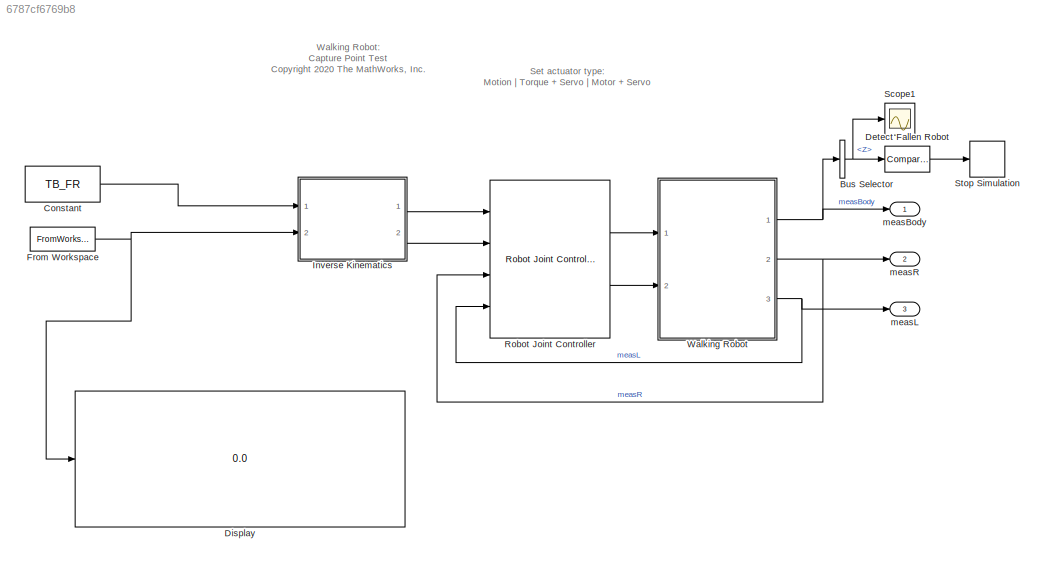
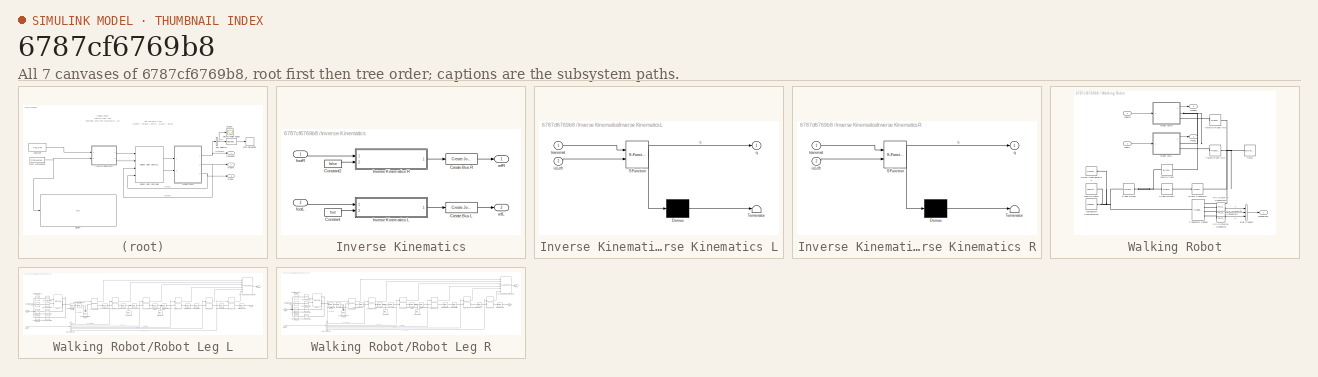
[diagram: thumbnail index - all 7 canvases of the model, root first then tree order]
MODEL slx_6787cf6769b8
KIND model
CONFIG AbsTol = auto
CONFIG EnableMultiTasking = off
CONFIG FixedStep = auto
CONFIG MaxStep = auto
CONFIG MinStep = auto
CONFIG RelTol = 1e-3
CONFIG SampleTimeConstraint = Unconstrained
CONFIG Solver = VariableStepAuto
CONFIG SolverName = VariableStepAuto
CONFIG StartTime = 0.0
CONFIG StopTime = 10.0
BLOCK [BusSelector] Bus Selector
  OutputSignals = Z
  Ports = [1, 1]
BLOCK [Constant] Constant
  Value = TB_FR
BLOCK [Reference] Detect Fallen Robot  REF=simulink/Logic and Bit
Operations/Compare
To Constant
  Ports = [1, 1]
  SourceBlock = simulink/Logic and Bit\nOperations/Compare\nTo Constant
  SourceProductBaseCode = SL
  SourceType = Compare To Constant
BLOCK [Display] Display
  Decimation = 1
  Ports = [1]
BLOCK [FromWorkspace] From Workspace
  OutputAfterFinalValue = Holding final value
  SampleTime = Ts
  VariableName = simin
BLOCK [SubSystem] Inverse Kinematics
  Ports = [2, 2]
  RequestExecContextInheritance = off
BLOCK [Constant] Inverse Kinematics/Constant
  Value = true
BLOCK [Constant] Inverse Kinematics/Constant2
  Value = false
BLOCK [Reference] Inverse Kinematics/Create Bus L  REF=walkingRobotUtils/Create Joint Angle Bus
  Ports = [1, 1]
  SourceBlock = walkingRobotUtils/Create Joint Angle Bus
  SourceType = SubSystem
BLOCK [Reference] Inverse Kinematics/Create Bus R  REF=walkingRobotUtils/Create Joint Angle Bus
  Ports = [1, 1]
  SourceBlock = walkingRobotUtils/Create Joint Angle Bus
  SourceType = SubSystem
BLOCK [SubSystem] Inverse Kinematics/Inverse Kinematics L
  ErrorFcn = Stateflow.Translate.translate
  PermitHierarchicalResolution = ExplicitOnly
  Ports = [2, 1]
  RequestExecContextInheritance = off
  SFBlockType = MATLAB Function
  TreatAsAtomicUnit = on
BLOCK [Demux] Inverse Kinematics/Inverse Kinematics L/ Demux 
  Outputs = 1
  Ports = [1, 1]
BLOCK [S-Function] Inverse Kinematics/Inverse Kinematics L/ SFunction 
  EnableBusSupport = on
  FunctionName = sf_sfun
  PortCounts = [2 2]
  Ports = [2, 2]
  SFcnIsStateOwnerBlock = off
  SFunctionDeploymentMode = off
  Tag = Stateflow S-Function 1
BLOCK [Terminator] Inverse Kinematics/Inverse Kinematics L/ Terminator 
BLOCK [Inport] Inverse Kinematics/Inverse Kinematics L/isLeft
  Port = 2
BLOCK [Outport] Inverse Kinematics/Inverse Kinematics L/q
BLOCK [Inport] Inverse Kinematics/Inverse Kinematics L/transmat
BLOCK [SubSystem] Inverse Kinematics/Inverse Kinematics R
  ErrorFcn = Stateflow.Translate.translate
  PermitHierarchicalResolution = ExplicitOnly
  Ports = [2, 1]
  RequestExecContextInheritance = off
  SFBlockType = MATLAB Function
  TreatAsAtomicUnit = on
BLOCK [Demux] Inverse Kinematics/Inverse Kinematics R/ Demux 
  Outputs = 1
  Ports = [1, 1]
BLOCK [S-Function] Inverse Kinematics/Inverse Kinematics R/ SFunction 
  EnableBusSupport = on
  FunctionName = sf_sfun
  PortCounts = [2 2]
  Ports = [2, 2]
  SFcnIsStateOwnerBlock = off
  SFunctionDeploymentMode = off
  Tag = Stateflow S-Function 2
BLOCK [Terminator] Inverse Kinematics/Inverse Kinematics R/ Terminator 
BLOCK [Inport] Inverse Kinematics/Inverse Kinematics R/isLeft
  Port = 2
BLOCK [Outport] Inverse Kinematics/Inverse Kinematics R/q
BLOCK [Inport] Inverse Kinematics/Inverse Kinematics R/transmat
BLOCK [Inport] Inverse Kinematics/footL
  Port = 2
BLOCK [Inport] Inverse Kinematics/footR
BLOCK [Outport] Inverse Kinematics/refL
  Port = 2
BLOCK [Outport] Inverse Kinematics/refR
BLOCK [Reference] Robot Joint Controller  REF=walkingRobotUtils/Robot Joint Controller
  Ports = [4, 2]
  SourceBlock = walkingRobotUtils/Robot Joint Controller
  SourceType = SubSystem
BLOCK [Scope] Scope1
  Floating = off
  NumInputPorts = 1
  Ports = [1]
  ScopeSpecificationString = Simulink.scopes.TimeScopeBlockCfg('CurrentConfiguration', extmgr.ConfigurationSet(extmgr.Configuration('Core','General UI',true),extmgr.Configuration('Core','Source UI',true),extmgr.Configuration('Sources','WiredSimulink',true,'DataLoggingVariableName','ScopeData1'),extmgr.Configuration('Visuals','Time Domain',true,'SerializedDisplays',{struct('MinYLimReal','0.69351','MaxYLimReal','0.70444','YLabe...<+1406ch>
BLOCK [Stop] Stop Simulation
BLOCK [SubSystem] Walking Robot
  Ports = [2, 3]
  RequestExecContextInheritance = off
BLOCK [BusCreator] Walking Robot/Bus Creator
  DisplayOption = bar
  InheritFromInputs = on
  Inputs = 3
  Ports = [3, 1]
BLOCK [Inport] Walking Robot/InputL
  Port = 2
BLOCK [Inport] Walking Robot/InputR
BLOCK [Reference] Walking Robot/Mechanism Configuration  REF=sm_lib/Utilities/Mechanism
Configuration
  Ports = [0, 0, 0, 0, 0, 0, 1]
  SourceBlock = sm_lib/Utilities/Mechanism\nConfiguration
  SourceProductBaseCode = MS
  SourceType = Mechanism\nConfiguration
BLOCK [Reference] Walking Robot/PS-Simulink Converter  REF=nesl_utility/PS-Simulink
Converter
  Ports = [0, 1, 0, 0, 0, 1]
  SourceBlock = nesl_utility/PS-Simulink\nConverter
  SourceProductBaseCode = SS
  SourceType = PS-Simulink\nConverter
BLOCK [Reference] Walking Robot/PS-Simulink Converter1  REF=nesl_utility/PS-Simulink
Converter
  Ports = [0, 1, 0, 0, 0, 1]
  SourceBlock = nesl_utility/PS-Simulink\nConverter
  SourceProductBaseCode = SS
  SourceType = PS-Simulink\nConverter
BLOCK [Reference] Walking Robot/PS-Simulink Converter2  REF=nesl_utility/PS-Simulink
Converter
  Ports = [0, 1, 0, 0, 0, 1]
  SourceBlock = nesl_utility/PS-Simulink\nConverter
  SourceProductBaseCode = SS
  SourceType = PS-Simulink\nConverter
BLOCK [Reference] Walking Robot/Plane Offset  REF=sm_lib/Frames and
Transforms/Rigid
Transform
  Ports = [0, 0, 0, 0, 0, 1, 1]
  SourceBlock = sm_lib/Frames and\nTransforms/Rigid\nTransform
  SourceProductBaseCode = MS
  SourceType = Rigid\nTransform
BLOCK [Reference] Walking Robot/Plane Offset1  REF=sm_lib/Frames and
Transforms/Rigid
Transform
  Ports = [0, 0, 0, 0, 0, 1, 1]
  SourceBlock = sm_lib/Frames and\nTransforms/Rigid\nTransform
  SourceProductBaseCode = MS
  SourceType = Rigid\nTransform
BLOCK [Reference] Walking Robot/Rigid Transform  REF=sm_lib/Frames and
Transforms/Rigid
Transform
  Ports = [0, 0, 0, 0, 0, 1, 1]
  SourceBlock = sm_lib/Frames and\nTransforms/Rigid\nTransform
  SourceProductBaseCode = MS
  SourceType = Rigid\nTransform
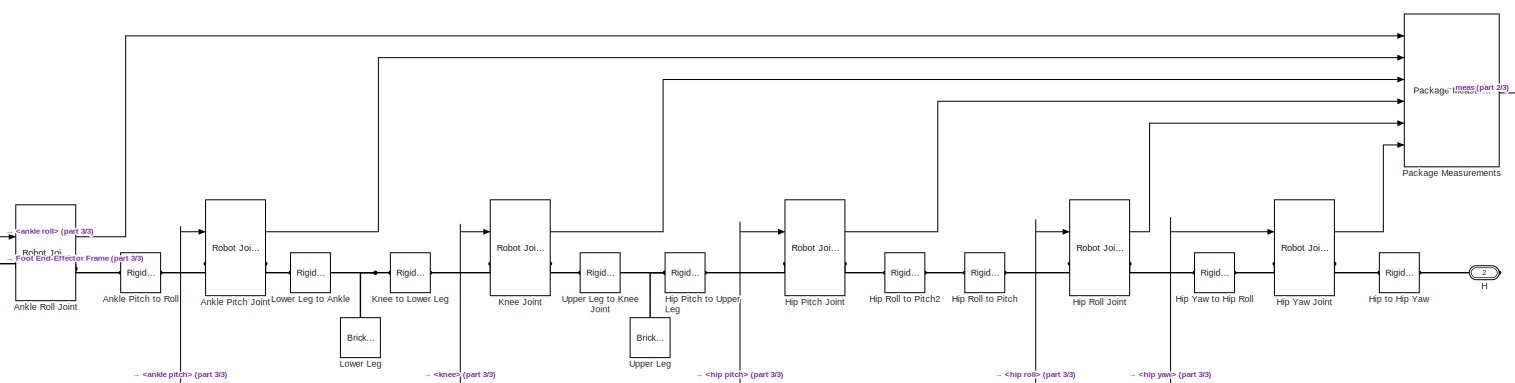
[diagram: Walking Robot/Robot Leg L - part 1/3, central region]
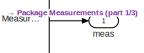
[diagram: Walking Robot/Robot Leg L - part 2/3, top right region]
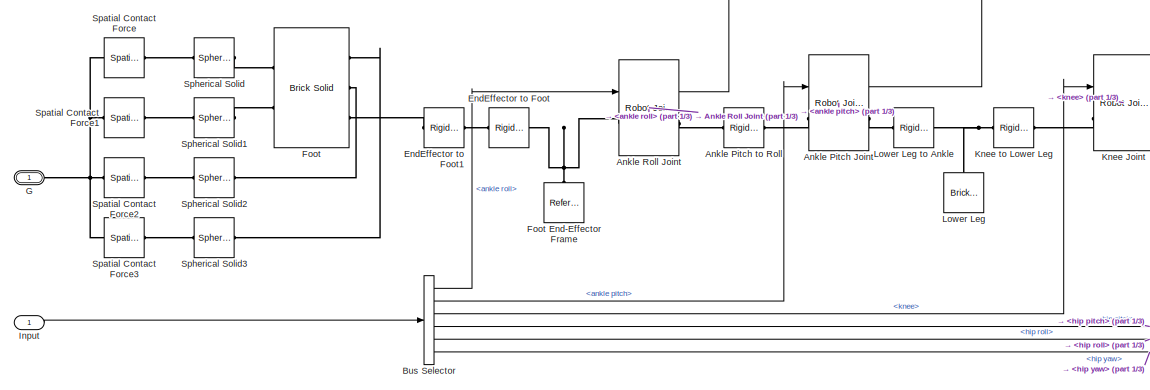
[diagram: Walking Robot/Robot Leg L - part 3/3, middle left region]
BLOCK [SubSystem] Walking Robot/Robot Leg L
  Ports = [1, 1, 0, 0, 0, 0, 2]
  RequestExecContextInheritance = off
BLOCK [Reference] Walking Robot/Robot Leg L/Ankle Pitch Joint  REF=walkingRobotUtils/Robot Joint
  Ports = [1, 1, 0, 0, 0, 1, 1]
  SourceBlock = walkingRobotUtils/Robot Joint
BLOCK [Reference] Walking Robot/Robot Leg L/Ankle Pitch to Roll  REF=sm_lib/Frames and
Transforms/Rigid
Transform
  NameLocation = top
  Ports = [0, 0, 0, 0, 0, 1, 1]
  SourceBlock = sm_lib/Frames and\nTransforms/Rigid\nTransform
  SourceProductBaseCode = MS
  SourceType = Rigid\nTransform
BLOCK [Reference] Walking Robot/Robot Leg L/Ankle Roll Joint  REF=walkingRobotUtils/Robot Joint
  Ports = [1, 1, 0, 0, 0, 1, 1]
  SourceBlock = walkingRobotUtils/Robot Joint
BLOCK [BusSelector] Walking Robot/Robot Leg L/Bus Selector
  OutputSignals = ankle roll,ankle pitch,knee,hip pitch,hip roll,hip yaw
  Ports = [1, 6]
BLOCK [Reference] Walking Robot/Robot Leg L/EndEffector to Foot  REF=sm_lib/Frames and
Transforms/Rigid
Transform
  NameLocation = top
  Ports = [0, 0, 0, 0, 0, 1, 1]
  SourceBlock = sm_lib/Frames and\nTransforms/Rigid\nTransform
  SourceProductBaseCode = MS
  SourceType = Rigid\nTransform
BLOCK [Reference] Walking Robot/Robot Leg L/EndEffector to Foot1  REF=sm_lib/Frames and
Transforms/Rigid
Transform
  Ports = [0, 0, 0, 0, 0, 1, 1]
  SourceBlock = sm_lib/Frames and\nTransforms/Rigid\nTransform
  SourceProductBaseCode = MS
  SourceType = Rigid\nTransform
BLOCK [Reference] Walking Robot/Robot Leg L/Foot  REF=sm_lib/Body Elements/Brick Solid
  Ports = [0, 0, 0, 0, 0, 3, 2]
  SourceBlock = sm_lib/Body Elements/Brick Solid
  SourceProductBaseCode = MS
  SourceType = Brick Solid
BLOCK [Reference] Walking Robot/Robot Leg L/Foot End-Effector Frame  REF=sm_lib/Frames and
Transforms/Reference
Frame
  NameLocation = right
  Ports = [0, 0, 0, 0, 0, 0, 1]
  SourceBlock = sm_lib/Frames and\nTransforms/Reference\nFrame
  SourceProductBaseCode = MS
  SourceType = Reference\nFrame
BLOCK [PMIOPort] Walking Robot/Robot Leg L/G
  Side = Right
BLOCK [PMIOPort] Walking Robot/Robot Leg L/H
  Port = 2
  Side = Right
BLOCK [Reference] Walking Robot/Robot Leg L/Hip Pitch Joint  REF=walkingRobotUtils/Robot Joint
  Ports = [1, 1, 0, 0, 0, 1, 1]
  SourceBlock = walkingRobotUtils/Robot Joint
BLOCK [Reference] Walking Robot/Robot Leg L/Hip Pitch to Upper Leg  REF=sm_lib/Frames and
Transforms/Rigid
Transform
  NameLocation = top
  Ports = [0, 0, 0, 0, 0, 1, 1]
  SourceBlock = sm_lib/Frames and\nTransforms/Rigid\nTransform
  SourceProductBaseCode = MS
  SourceType = Rigid\nTransform
BLOCK [Reference] Walking Robot/Robot Leg L/Hip Roll Joint  REF=walkingRobotUtils/Robot Joint
  Ports = [1, 1, 0, 0, 0, 1, 1]
  SourceBlock = walkingRobotUtils/Robot Joint
BLOCK [Reference] Walking Robot/Robot Leg L/Hip Roll to Pitch  REF=sm_lib/Frames and
Transforms/Rigid
Transform
  Ports = [0, 0, 0, 0, 0, 1, 1]
  SourceBlock = sm_lib/Frames and\nTransforms/Rigid\nTransform
  SourceProductBaseCode = MS
  SourceType = Rigid\nTransform
BLOCK [Reference] Walking Robot/Robot Leg L/Hip Roll to Pitch2  REF=sm_lib/Frames and
Transforms/Rigid
Transform
  NameLocation = top
  Ports = [0, 0, 0, 0, 0, 1, 1]
  SourceBlock = sm_lib/Frames and\nTransforms/Rigid\nTransform
  SourceProductBaseCode = MS
  SourceType = Rigid\nTransform
BLOCK [Reference] Walking Robot/Robot Leg L/Hip Yaw Joint  REF=walkingRobotUtils/Robot Joint
  Ports = [1, 1, 0, 0, 0, 1, 1]
  SourceBlock = walkingRobotUtils/Robot Joint
BLOCK [Reference] Walking Robot/Robot Leg L/Hip Yaw to Hip Roll  REF=sm_lib/Frames and
Transforms/Rigid
Transform
  NameLocation = top
  Ports = [0, 0, 0, 0, 0, 1, 1]
  SourceBlock = sm_lib/Frames and\nTransforms/Rigid\nTransform
  SourceProductBaseCode = MS
  SourceType = Rigid\nTransform
BLOCK [Reference] Walking Robot/Robot Leg L/Hip to Hip Yaw  REF=sm_lib/Frames and
Transforms/Rigid
Transform
  NameLocation = top
  Ports = [0, 0, 0, 0, 0, 1, 1]
  SourceBlock = sm_lib/Frames and\nTransforms/Rigid\nTransform
  SourceProductBaseCode = MS
  SourceType = Rigid\nTransform
BLOCK [Inport] Walking Robot/Robot Leg L/Input
BLOCK [Reference] Walking Robot/Robot Leg L/Knee Joint  REF=walkingRobotUtils/Robot Joint
  Ports = [1, 1, 0, 0, 0, 1, 1]
  SourceBlock = walkingRobotUtils/Robot Joint
BLOCK [Reference] Walking Robot/Robot Leg L/Knee to Lower Leg  REF=sm_lib/Frames and
Transforms/Rigid
Transform
  NameLocation = top
  Ports = [0, 0, 0, 0, 0, 1, 1]
  SourceBlock = sm_lib/Frames and\nTransforms/Rigid\nTransform
  SourceProductBaseCode = MS
  SourceType = Rigid\nTransform
BLOCK [Reference] Walking Robot/Robot Leg L/Lower Leg  REF=sm_lib/Body Elements/Brick Solid
  NameLocation = right
  Ports = [0, 0, 0, 0, 0, 0, 1]
  SourceBlock = sm_lib/Body Elements/Brick Solid
  SourceProductBaseCode = MS
  SourceType = Brick Solid
BLOCK [Reference] Walking Robot/Robot Leg L/Lower Leg to Ankle  REF=sm_lib/Frames and
Transforms/Rigid
Transform
  NameLocation = top
  Ports = [0, 0, 0, 0, 0, 1, 1]
  SourceBlock = sm_lib/Frames and\nTransforms/Rigid\nTransform
  SourceProductBaseCode = MS
  SourceType = Rigid\nTransform
BLOCK [Reference] Walking Robot/Robot Leg L/Package Measurements  REF=walkingRobotUtils/Package Measurements
  Ports = [6, 1]
  SourceBlock = walkingRobotUtils/Package Measurements
  SourceType = SubSystem
BLOCK [Reference] Walking Robot/Robot Leg L/Spatial Contact Force  REF=sm_lib/Forces and
Torques/Spatial
Contact Force
  Ports = [0, 0, 0, 0, 0, 1, 1]
  SourceBlock = sm_lib/Forces and\nTorques/Spatial\nContact Force
  SourceProductBaseCode = MS
  SourceType = Spatial\nContact Force
BLOCK [Reference] Walking Robot/Robot Leg L/Spatial Contact Force1  REF=sm_lib/Forces and
Torques/Spatial
Contact Force
  Ports = [0, 0, 0, 0, 0, 1, 1]
  SourceBlock = sm_lib/Forces and\nTorques/Spatial\nContact Force
  SourceProductBaseCode = MS
  SourceType = Spatial\nContact Force
BLOCK [Reference] Walking Robot/Robot Leg L/Spatial Contact Force2  REF=sm_lib/Forces and
Torques/Spatial
Contact Force
  Ports = [0, 0, 0, 0, 0, 1, 1]
  SourceBlock = sm_lib/Forces and\nTorques/Spatial\nContact Force
  SourceProductBaseCode = MS
  SourceType = Spatial\nContact Force
BLOCK [Reference] Walking Robot/Robot Leg L/Spatial Contact Force3  REF=sm_lib/Forces and
Torques/Spatial
Contact Force
  Ports = [0, 0, 0, 0, 0, 1, 1]
  SourceBlock = sm_lib/Forces and\nTorques/Spatial\nContact Force
  SourceProductBaseCode = MS
  SourceType = Spatial\nContact Force
BLOCK [Reference] Walking Robot/Robot Leg L/Spherical Solid  REF=sm_lib/Body Elements/Spherical Solid
  Ports = [0, 0, 0, 0, 0, 1, 1]
  SourceBlock = sm_lib/Body Elements/Spherical Solid
  SourceProductBaseCode = MS
  SourceType = Spherical Solid
BLOCK [Reference] Walking Robot/Robot Leg L/Spherical Solid1  REF=sm_lib/Body Elements/Spherical Solid
  Ports = [0, 0, 0, 0, 0, 1, 1]
  SourceBlock = sm_lib/Body Elements/Spherical Solid
  SourceProductBaseCode = MS
  SourceType = Spherical Solid
BLOCK [Reference] Walking Robot/Robot Leg L/Spherical Solid2  REF=sm_lib/Body Elements/Spherical Solid
  Ports = [0, 0, 0, 0, 0, 1, 1]
  SourceBlock = sm_lib/Body Elements/Spherical Solid
  SourceProductBaseCode = MS
  SourceType = Spherical Solid
BLOCK [Reference] Walking Robot/Robot Leg L/Spherical Solid3  REF=sm_lib/Body Elements/Spherical Solid
  Ports = [0, 0, 0, 0, 0, 1, 1]
  SourceBlock = sm_lib/Body Elements/Spherical Solid
  SourceProductBaseCode = MS
  SourceType = Spherical Solid
BLOCK [Reference] Walking Robot/Robot Leg L/Upper Leg  REF=sm_lib/Body Elements/Brick Solid
  NameLocation = right
  Ports = [0, 0, 0, 0, 0, 0, 1]
  SourceBlock = sm_lib/Body Elements/Brick Solid
  SourceProductBaseCode = MS
  SourceType = Brick Solid
BLOCK [Reference] Walking Robot/Robot Leg L/Upper Leg to Knee Joint  REF=sm_lib/Frames and
Transforms/Rigid
Transform
  NameLocation = top
  Ports = [0, 0, 0, 0, 0, 1, 1]
  SourceBlock = sm_lib/Frames and\nTransforms/Rigid\nTransform
  SourceProductBaseCode = MS
  SourceType = Rigid\nTransform
BLOCK [Outport] Walking Robot/Robot Leg L/meas
  VectorParamsAs1DForOutWhenUnconnected = off
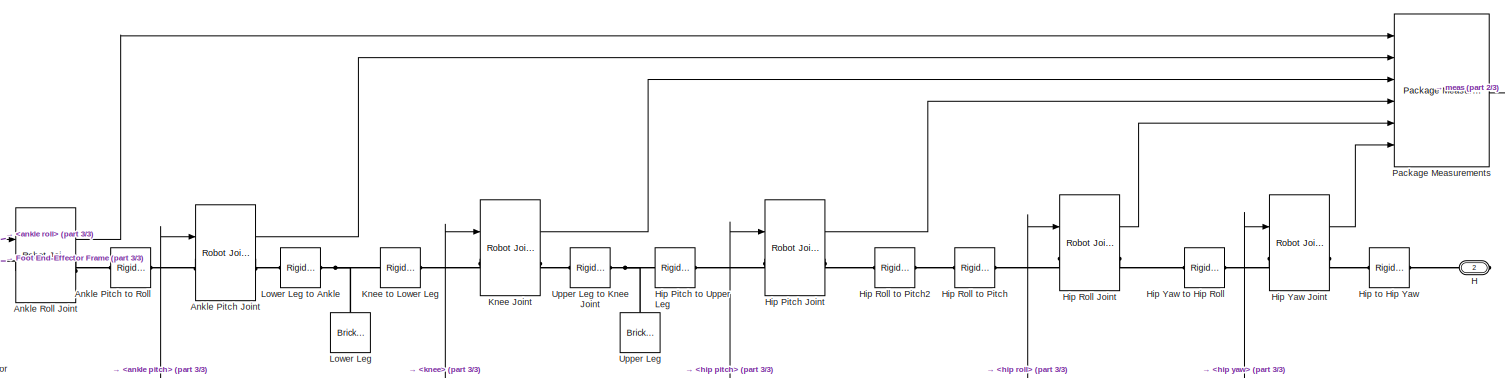
[diagram: Walking Robot/Robot Leg R - part 1/3, central region]
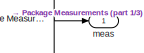
[diagram: Walking Robot/Robot Leg R - part 2/3, top right region]
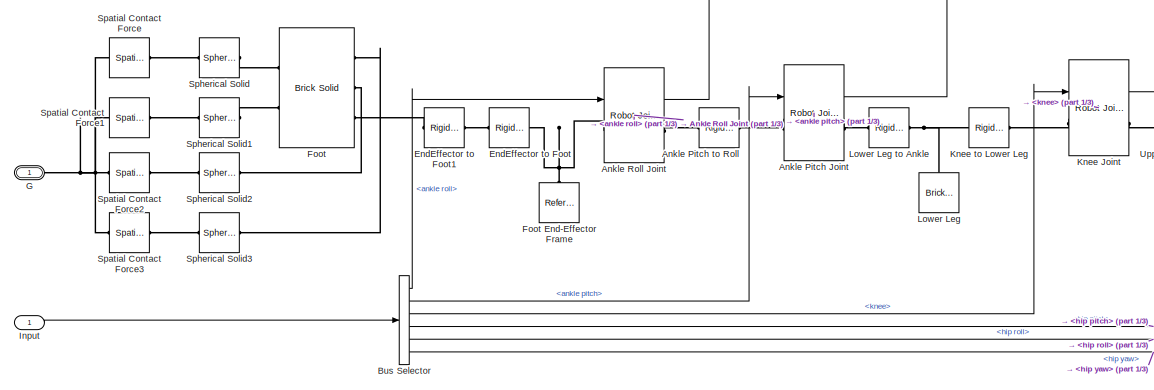
[diagram: Walking Robot/Robot Leg R - part 3/3, middle left region]
BLOCK [SubSystem] Walking Robot/Robot Leg R
  Ports = [1, 1, 0, 0, 0, 0, 2]
  RequestExecContextInheritance = off
BLOCK [Reference] Walking Robot/Robot Leg R/Ankle Pitch Joint  REF=walkingRobotUtils/Robot Joint
  Ports = [1, 1, 0, 0, 0, 1, 1]
  SourceBlock = walkingRobotUtils/Robot Joint
BLOCK [Reference] Walking Robot/Robot Leg R/Ankle Pitch to Roll  REF=sm_lib/Frames and
Transforms/Rigid
Transform
  NameLocation = top
  Ports = [0, 0, 0, 0, 0, 1, 1]
  SourceBlock = sm_lib/Frames and\nTransforms/Rigid\nTransform
  SourceProductBaseCode = MS
  SourceType = Rigid\nTransform
BLOCK [Reference] Walking Robot/Robot Leg R/Ankle Roll Joint  REF=walkingRobotUtils/Robot Joint
  Ports = [1, 1, 0, 0, 0, 1, 1]
  SourceBlock = walkingRobotUtils/Robot Joint
BLOCK [BusSelector] Walking Robot/Robot Leg R/Bus Selector
  OutputSignals = ankle roll,ankle pitch,knee,hip pitch,hip roll,hip yaw
  Ports = [1, 6]
BLOCK [Reference] Walking Robot/Robot Leg R/EndEffector to Foot  REF=sm_lib/Frames and
Transforms/Rigid
Transform
  NameLocation = top
  Ports = [0, 0, 0, 0, 0, 1, 1]
  SourceBlock = sm_lib/Frames and\nTransforms/Rigid\nTransform
  SourceProductBaseCode = MS
  SourceType = Rigid\nTransform
BLOCK [Reference] Walking Robot/Robot Leg R/EndEffector to Foot1  REF=sm_lib/Frames and
Transforms/Rigid
Transform
  Ports = [0, 0, 0, 0, 0, 1, 1]
  SourceBlock = sm_lib/Frames and\nTransforms/Rigid\nTransform
  SourceProductBaseCode = MS
  SourceType = Rigid\nTransform
BLOCK [Reference] Walking Robot/Robot Leg R/Foot  REF=sm_lib/Body Elements/Brick Solid
  Ports = [0, 0, 0, 0, 0, 3, 2]
  SourceBlock = sm_lib/Body Elements/Brick Solid
  SourceProductBaseCode = MS
  SourceType = Brick Solid
BLOCK [Reference] Walking Robot/Robot Leg R/Foot End-Effector Frame  REF=sm_lib/Frames and
Transforms/Reference
Frame
  NameLocation = right
  Ports = [0, 0, 0, 0, 0, 0, 1]
  SourceBlock = sm_lib/Frames and\nTransforms/Reference\nFrame
  SourceProductBaseCode = MS
  SourceType = Reference\nFrame
BLOCK [PMIOPort] Walking Robot/Robot Leg R/G
  Side = Right
BLOCK [PMIOPort] Walking Robot/Robot Leg R/H
  Port = 2
  Side = Right
BLOCK [Reference] Walking Robot/Robot Leg R/Hip Pitch Joint  REF=walkingRobotUtils/Robot Joint
  Ports = [1, 1, 0, 0, 0, 1, 1]
  SourceBlock = walkingRobotUtils/Robot Joint
BLOCK [Reference] Walking Robot/Robot Leg R/Hip Pitch to Upper Leg  REF=sm_lib/Frames and
Transforms/Rigid
Transform
  NameLocation = top
  Ports = [0, 0, 0, 0, 0, 1, 1]
  SourceBlock = sm_lib/Frames and\nTransforms/Rigid\nTransform
  SourceProductBaseCode = MS
  SourceType = Rigid\nTransform
BLOCK [Reference] Walking Robot/Robot Leg R/Hip Roll Joint  REF=walkingRobotUtils/Robot Joint
  Ports = [1, 1, 0, 0, 0, 1, 1]
  SourceBlock = walkingRobotUtils/Robot Joint
BLOCK [Reference] Walking Robot/Robot Leg R/Hip Roll to Pitch  REF=sm_lib/Frames and
Transforms/Rigid
Transform
  Ports = [0, 0, 0, 0, 0, 1, 1]
  SourceBlock = sm_lib/Frames and\nTransforms/Rigid\nTransform
  SourceProductBaseCode = MS
  SourceType = Rigid\nTransform
BLOCK [Reference] Walking Robot/Robot Leg R/Hip Roll to Pitch2  REF=sm_lib/Frames and
Transforms/Rigid
Transform
  NameLocation = top
  Ports = [0, 0, 0, 0, 0, 1, 1]
  SourceBlock = sm_lib/Frames and\nTransforms/Rigid\nTransform
  SourceProductBaseCode = MS
  SourceType = Rigid\nTransform
BLOCK [Reference] Walking Robot/Robot Leg R/Hip Yaw Joint  REF=walkingRobotUtils/Robot Joint
  Ports = [1, 1, 0, 0, 0, 1, 1]
  SourceBlock = walkingRobotUtils/Robot Joint
BLOCK [Reference] Walking Robot/Robot Leg R/Hip Yaw to Hip Roll  REF=sm_lib/Frames and
Transforms/Rigid
Transform
  NameLocation = top
  Ports = [0, 0, 0, 0, 0, 1, 1]
  SourceBlock = sm_lib/Frames and\nTransforms/Rigid\nTransform
  SourceProductBaseCode = MS
  SourceType = Rigid\nTransform
BLOCK [Reference] Walking Robot/Robot Leg R/Hip to Hip Yaw  REF=sm_lib/Frames and
Transforms/Rigid
Transform
  NameLocation = top
  Ports = [0, 0, 0, 0, 0, 1, 1]
  SourceBlock = sm_lib/Frames and\nTransforms/Rigid\nTransform
  SourceProductBaseCode = MS
  SourceType = Rigid\nTransform
BLOCK [Inport] Walking Robot/Robot Leg R/Input
BLOCK [Reference] Walking Robot/Robot Leg R/Knee Joint  REF=walkingRobotUtils/Robot Joint
  Ports = [1, 1, 0, 0, 0, 1, 1]
  SourceBlock = walkingRobotUtils/Robot Joint
BLOCK [Reference] Walking Robot/Robot Leg R/Knee to Lower Leg  REF=sm_lib/Frames and
Transforms/Rigid
Transform
  NameLocation = top
  Ports = [0, 0, 0, 0, 0, 1, 1]
  SourceBlock = sm_lib/Frames and\nTransforms/Rigid\nTransform
  SourceProductBaseCode = MS
  SourceType = Rigid\nTransform
BLOCK [Reference] Walking Robot/Robot Leg R/Lower Leg  REF=sm_lib/Body Elements/Brick Solid
  NameLocation = right
  Ports = [0, 0, 0, 0, 0, 0, 1]
  SourceBlock = sm_lib/Body Elements/Brick Solid
  SourceProductBaseCode = MS
  SourceType = Brick Solid
BLOCK [Reference] Walking Robot/Robot Leg R/Lower Leg to Ankle  REF=sm_lib/Frames and
Transforms/Rigid
Transform
  NameLocation = top
  Ports = [0, 0, 0, 0, 0, 1, 1]
  SourceBlock = sm_lib/Frames and\nTransforms/Rigid\nTransform
  SourceProductBaseCode = MS
  SourceType = Rigid\nTransform
BLOCK [Reference] Walking Robot/Robot Leg R/Package Measurements  REF=walkingRobotUtils/Package Measurements
  Ports = [6, 1]
  SourceBlock = walkingRobotUtils/Package Measurements
  SourceType = SubSystem
BLOCK [Reference] Walking Robot/Robot Leg R/Spatial Contact Force  REF=sm_lib/Forces and
Torques/Spatial
Contact Force
  Ports = [0, 0, 0, 0, 0, 1, 1]
  SourceBlock = sm_lib/Forces and\nTorques/Spatial\nContact Force
  SourceProductBaseCode = MS
  SourceType = Spatial\nContact Force
BLOCK [Reference] Walking Robot/Robot Leg R/Spatial Contact Force1  REF=sm_lib/Forces and
Torques/Spatial
Contact Force
  Ports = [0, 0, 0, 0, 0, 1, 1]
  SourceBlock = sm_lib/Forces and\nTorques/Spatial\nContact Force
  SourceProductBaseCode = MS
  SourceType = Spatial\nContact Force
BLOCK [Reference] Walking Robot/Robot Leg R/Spatial Contact Force2  REF=sm_lib/Forces and
Torques/Spatial
Contact Force
  Ports = [0, 0, 0, 0, 0, 1, 1]
  SourceBlock = sm_lib/Forces and\nTorques/Spatial\nContact Force
  SourceProductBaseCode = MS
  SourceType = Spatial\nContact Force
BLOCK [Reference] Walking Robot/Robot Leg R/Spatial Contact Force3  REF=sm_lib/Forces and
Torques/Spatial
Contact Force
  Ports = [0, 0, 0, 0, 0, 1, 1]
  SourceBlock = sm_lib/Forces and\nTorques/Spatial\nContact Force
  SourceProductBaseCode = MS
  SourceType = Spatial\nContact Force
BLOCK [Reference] Walking Robot/Robot Leg R/Spherical Solid  REF=sm_lib/Body Elements/Spherical Solid
  Ports = [0, 0, 0, 0, 0, 1, 1]
  SourceBlock = sm_lib/Body Elements/Spherical Solid
  SourceProductBaseCode = MS
  SourceType = Spherical Solid
BLOCK [Reference] Walking Robot/Robot Leg R/Spherical Solid1  REF=sm_lib/Body Elements/Spherical Solid
  Ports = [0, 0, 0, 0, 0, 1, 1]
  SourceBlock = sm_lib/Body Elements/Spherical Solid
  SourceProductBaseCode = MS
  SourceType = Spherical Solid
BLOCK [Reference] Walking Robot/Robot Leg R/Spherical Solid2  REF=sm_lib/Body Elements/Spherical Solid
  Ports = [0, 0, 0, 0, 0, 1, 1]
  SourceBlock = sm_lib/Body Elements/Spherical Solid
  SourceProductBaseCode = MS
  SourceType = Spherical Solid
BLOCK [Reference] Walking Robot/Robot Leg R/Spherical Solid3  REF=sm_lib/Body Elements/Spherical Solid
  Ports = [0, 0, 0, 0, 0, 1, 1]
  SourceBlock = sm_lib/Body Elements/Spherical Solid
  SourceProductBaseCode = MS
  SourceType = Spherical Solid
BLOCK [Reference] Walking Robot/Robot Leg R/Upper Leg  REF=sm_lib/Body Elements/Brick Solid
  NameLocation = right
  Ports = [0, 0, 0, 0, 0, 0, 1]
  SourceBlock = sm_lib/Body Elements/Brick Solid
  SourceProductBaseCode = MS
  SourceType = Brick Solid
BLOCK [Reference] Walking Robot/Robot Leg R/Upper Leg to Knee Joint  REF=sm_lib/Frames and
Transforms/Rigid
Transform
  NameLocation = top
  Ports = [0, 0, 0, 0, 0, 1, 1]
  SourceBlock = sm_lib/Frames and\nTransforms/Rigid\nTransform
  SourceProductBaseCode = MS
  SourceType = Rigid\nTransform
BLOCK [Outport] Walking Robot/Robot Leg R/meas
  VectorParamsAs1DForOutWhenUnconnected = off
BLOCK [Reference] Walking Robot/Solver Configuration  REF=nesl_utility/Solver
Configuration
  Ports = [0, 0, 0, 0, 0, 0, 1]
  SourceBlock = nesl_utility/Solver\nConfiguration
  SourceProductBaseCode = SS
  SourceType = Solver\nConfiguration
BLOCK [Reference] Walking Robot/Torso  REF=sm_lib/Body Elements/Brick Solid
  Ports = [0, 0, 0, 0, 0, 0, 1]
  SourceBlock = sm_lib/Body Elements/Brick Solid
  SourceProductBaseCode = MS
  SourceType = Brick Solid
BLOCK [Reference] Walking Robot/Torso to Left Hip  REF=sm_lib/Frames and
Transforms/Rigid
Transform
  Ports = [0, 0, 0, 0, 0, 1, 1]
  SourceBlock = sm_lib/Frames and\nTransforms/Rigid\nTransform
  SourceProductBaseCode = MS
  SourceType = Rigid\nTransform
BLOCK [Reference] Walking Robot/Torso to Right Hip  REF=sm_lib/Frames and
Transforms/Rigid
Transform
  Ports = [0, 0, 0, 0, 0, 1, 1]
  SourceBlock = sm_lib/Frames and\nTransforms/Rigid\nTransform
  SourceProductBaseCode = MS
  SourceType = Rigid\nTransform
BLOCK [Reference] Walking Robot/Transform Sensor  REF=sm_lib/Frames and
Transforms/Transform
Sensor
  Ports = [0, 0, 0, 0, 0, 1, 4]
  SourceBlock = sm_lib/Frames and\nTransforms/Transform\nSensor
  SourceProductBaseCode = MS
  SourceType = Transform\nSensor
BLOCK [Reference] Walking Robot/World Frame  REF=sm_lib/Frames and
Transforms/World Frame
  Ports = [0, 0, 0, 0, 0, 0, 1]
  SourceBlock = sm_lib/Frames and\nTransforms/World Frame
  SourceProductBaseCode = MS
  SourceType = World Frame
BLOCK [Reference] Walking Robot/World Plane  REF=sm_lib/Body Elements/Brick Solid
  Ports = [0, 0, 0, 0, 0, 1, 1]
  SourceBlock = sm_lib/Body Elements/Brick Solid
  SourceProductBaseCode = MS
  SourceType = Brick Solid
BLOCK [Outport] Walking Robot/measBody
  VectorParamsAs1DForOutWhenUnconnected = off
BLOCK [Outport] Walking Robot/measL
  Port = 3
  VectorParamsAs1DForOutWhenUnconnected = off
BLOCK [Outport] Walking Robot/measR
  Port = 2
  VectorParamsAs1DForOutWhenUnconnected = off
BLOCK [Outport] measBody
  VectorParamsAs1DForOutWhenUnconnected = off
BLOCK [Outport] measL
  Port = 3
  VectorParamsAs1DForOutWhenUnconnected = off
BLOCK [Outport] measR
  Port = 2
  VectorParamsAs1DForOutWhenUnconnected = off
ANNOTATION (root): Walking Robot: Capture Point Test <copyright redacted>
ANNOTATION (root): Set actuator type: Motion | Torque + Servo | Motor + Servo
NET Bus Selector:1 -> Detect Fallen Robot:1, Scope1:1
LINE Constant:1 -> Inverse Kinematics:1
LINE Detect Fallen Robot:1 -> Stop Simulation:1
NET From Workspace:1 -> Display:1, Inverse Kinematics:2
LINE Inverse Kinematics/Constant2:1 -> Inverse Kinematics/Inverse Kinematics R:2
LINE Inverse Kinematics/Constant:1 -> Inverse Kinematics/Inverse Kinematics L:2
LINE Inverse Kinematics/Create Bus L:1 -> Inverse Kinematics/refL:1
LINE Inverse Kinematics/Create Bus R:1 -> Inverse Kinematics/refR:1
LINE Inverse Kinematics/Inverse Kinematics L:1 -> Inverse Kinematics/Create Bus L:1
LINE Inverse Kinematics/Inverse Kinematics R:1 -> Inverse Kinematics/Create Bus R:1
LINE Inverse Kinematics/footL:1 -> Inverse Kinematics/Inverse Kinematics L:1
LINE Inverse Kinematics/footR:1 -> Inverse Kinematics/Inverse Kinematics R:1
LINE Inverse Kinematics:1 -> Robot Joint Controller:1
LINE Inverse Kinematics:2 -> Robot Joint Controller:2
LINE Robot Joint Controller:1 -> Walking Robot:1
LINE Robot Joint Controller:2 -> Walking Robot:2
LINE Walking Robot/Bus Creator:1 -> Walking Robot/measBody:1
LINE Walking Robot/InputL:1 -> Walking Robot/Robot Leg L:1
LINE Walking Robot/InputR:1 -> Walking Robot/Robot Leg R:1
LINE Walking Robot/PS-Simulink Converter1:1 -> Walking Robot/Bus Creator:2
LINE Walking Robot/PS-Simulink Converter2:1 -> Walking Robot/Bus Creator:1
LINE Walking Robot/PS-Simulink Converter:1 -> Walking Robot/Bus Creator:3
LINE Walking Robot/Robot Leg L/Ankle Pitch Joint:1 -> Walking Robot/Robot Leg L/Package Measurements:2
LINE Walking Robot/Robot Leg L/Ankle Roll Joint:1 -> Walking Robot/Robot Leg L/Package Measurements:1
LINE Walking Robot/Robot Leg L/Bus Selector:1 -> Walking Robot/Robot Leg L/Ankle Roll Joint:1
LINE Walking Robot/Robot Leg L/Bus Selector:2 -> Walking Robot/Robot Leg L/Ankle Pitch Joint:1
LINE Walking Robot/Robot Leg L/Bus Selector:3 -> Walking Robot/Robot Leg L/Knee Joint:1
LINE Walking Robot/Robot Leg L/Bus Selector:4 -> Walking Robot/Robot Leg L/Hip Pitch Joint:1
LINE Walking Robot/Robot Leg L/Bus Selector:5 -> Walking Robot/Robot Leg L/Hip Roll Joint:1
LINE Walking Robot/Robot Leg L/Bus Selector:6 -> Walking Robot/Robot Leg L/Hip Yaw Joint:1
LINE Walking Robot/Robot Leg L/Hip Pitch Joint:1 -> Walking Robot/Robot Leg L/Package Measurements:4
LINE Walking Robot/Robot Leg L/Hip Roll Joint:1 -> Walking Robot/Robot Leg L/Package Measurements:5
LINE Walking Robot/Robot Leg L/Hip Yaw Joint:1 -> Walking Robot/Robot Leg L/Package Measurements:6
LINE Walking Robot/Robot Leg L/Input:1 -> Walking Robot/Robot Leg L/Bus Selector:1
LINE Walking Robot/Robot Leg L/Knee Joint:1 -> Walking Robot/Robot Leg L/Package Measurements:3
LINE Walking Robot/Robot Leg L/Package Measurements:1 -> Walking Robot/Robot Leg L/meas:1
LINE Walking Robot/Robot Leg L:1 -> Walking Robot/measL:1
LINE Walking Robot/Robot Leg R/Ankle Pitch Joint:1 -> Walking Robot/Robot Leg R/Package Measurements:2
LINE Walking Robot/Robot Leg R/Ankle Roll Joint:1 -> Walking Robot/Robot Leg R/Package Measurements:1
LINE Walking Robot/Robot Leg R/Bus Selector:1 -> Walking Robot/Robot Leg R/Ankle Roll Joint:1
LINE Walking Robot/Robot Leg R/Bus Selector:2 -> Walking Robot/Robot Leg R/Ankle Pitch Joint:1
LINE Walking Robot/Robot Leg R/Bus Selector:3 -> Walking Robot/Robot Leg R/Knee Joint:1
LINE Walking Robot/Robot Leg R/Bus Selector:4 -> Walking Robot/Robot Leg R/Hip Pitch Joint:1
LINE Walking Robot/Robot Leg R/Bus Selector:5 -> Walking Robot/Robot Leg R/Hip Roll Joint:1
LINE Walking Robot/Robot Leg R/Bus Selector:6 -> Walking Robot/Robot Leg R/Hip Yaw Joint:1
LINE Walking Robot/Robot Leg R/Hip Pitch Joint:1 -> Walking Robot/Robot Leg R/Package Measurements:4
LINE Walking Robot/Robot Leg R/Hip Roll Joint:1 -> Walking Robot/Robot Leg R/Package Measurements:5
LINE Walking Robot/Robot Leg R/Hip Yaw Joint:1 -> Walking Robot/Robot Leg R/Package Measurements:6
LINE Walking Robot/Robot Leg R/Input:1 -> Walking Robot/Robot Leg R/Bus Selector:1
LINE Walking Robot/Robot Leg R/Knee Joint:1 -> Walking Robot/Robot Leg R/Package Measurements:3
LINE Walking Robot/Robot Leg R/Package Measurements:1 -> Walking Robot/Robot Leg R/meas:1
LINE Walking Robot/Robot Leg R:1 -> Walking Robot/measR:1
NET Walking Robot:1 -> Bus Selector:1, measBody:1
NET Walking Robot:2 -> Robot Joint Controller:3, measR:1
NET Walking Robot:3 -> Robot Joint Controller:4, measL:1
PNET net1: Walking Robot/Mechanism Configuration:RConn1 -- Walking Robot/Plane Offset:LConn1 -- Walking Robot/Solver Configuration:RConn1 -- Walking Robot/Transform Sensor:LConn1 -- Walking Robot/World Frame:RConn1
PLINE Walking Robot/PS-Simulink Converter1:LConn1 -- Walking Robot/Transform Sensor:RConn3
PLINE Walking Robot/PS-Simulink Converter2:LConn1 -- Walking Robot/Transform Sensor:RConn2
PLINE Walking Robot/PS-Simulink Converter:LConn1 -- Walking Robot/Transform Sensor:RConn4
PNET net2: Walking Robot/Plane Offset1:LConn1 -- Walking Robot/Plane Offset:RConn1 -- Walking Robot/World Plane:RConn1
PLINE Walking Robot/Plane Offset1:RConn1 -- Walking Robot/Rigid Transform:LConn1
PNET net3: Walking Robot/Rigid Transform:RConn1 -- Walking Robot/Torso to Left Hip:LConn1 -- Walking Robot/Torso to Right Hip:LConn1 -- Walking Robot/Torso:RConn1 -- Walking Robot/Transform Sensor:RConn1
PLINE Walking Robot/Robot Leg L/Ankle Pitch Joint:LConn1 -- Walking Robot/Robot Leg L/Ankle Pitch to Roll:LConn1
PLINE Walking Robot/Robot Leg L/Ankle Pitch Joint:RConn1 -- Walking Robot/Robot Leg L/Lower Leg to Ankle:RConn1
PLINE Walking Robot/Robot Leg L/Ankle Pitch to Roll:RConn1 -- Walking Robot/Robot Leg L/Ankle Roll Joint:RConn1
PNET net4: Walking Robot/Robot Leg L/Ankle Roll Joint:LConn1 -- Walking Robot/Robot Leg L/EndEffector to Foot:LConn1 -- Walking Robot/Robot Leg L/Foot End-Effector Frame:RConn1
PLINE Walking Robot/Robot Leg L/EndEffector to Foot1:LConn1 -- Walking Robot/Robot Leg L/EndEffector to Foot:RConn1
PLINE Walking Robot/Robot Leg L/EndEffector to Foot1:RConn1 -- Walking Robot/Robot Leg L/Foot:LConn3
PLINE Walking Robot/Robot Leg L/Foot:LConn1 -- Walking Robot/Robot Leg L/Spherical Solid3:RConn1
PLINE Walking Robot/Robot Leg L/Foot:LConn2 -- Walking Robot/Robot Leg L/Spherical Solid2:RConn1
PLINE Walking Robot/Robot Leg L/Foot:RConn1 -- Walking Robot/Robot Leg L/Spherical Solid:RConn1
PLINE Walking Robot/Robot Leg L/Foot:RConn2 -- Walking Robot/Robot Leg L/Spherical Solid1:RConn1
PNET net5: Walking Robot/Robot Leg L/G:RConn1 -- Walking Robot/Robot Leg L/Spatial Contact Force1:LConn1 -- Walking Robot/Robot Leg L/Spatial Contact Force2:LConn1 -- Walking Robot/Robot Leg L/Spatial Contact Force3:LConn1 -- Walking Robot/Robot Leg L/Spatial Contact Force:LConn1
PLINE Walking Robot/Robot Leg L/H:RConn1 -- Walking Robot/Robot Leg L/Hip to Hip Yaw:LConn1
PLINE Walking Robot/Robot Leg L/Hip Pitch Joint:LConn1 -- Walking Robot/Robot Leg L/Hip Pitch to Upper Leg:LConn1
PLINE Walking Robot/Robot Leg L/Hip Pitch Joint:RConn1 -- Walking Robot/Robot Leg L/Hip Roll to Pitch2:RConn1
PNET net6: Walking Robot/Robot Leg L/Hip Pitch to Upper Leg:RConn1 -- Walking Robot/Robot Leg L/Upper Leg to Knee Joint:LConn1 -- Walking Robot/Robot Leg L/Upper Leg:RConn1
PLINE Walking Robot/Robot Leg L/Hip Roll Joint:LConn1 -- Walking Robot/Robot Leg L/Hip Roll to Pitch:LConn1
PLINE Walking Robot/Robot Leg L/Hip Roll Joint:RConn1 -- Walking Robot/Robot Leg L/Hip Yaw to Hip Roll:RConn1
PLINE Walking Robot/Robot Leg L/Hip Roll to Pitch2:LConn1 -- Walking Robot/Robot Leg L/Hip Roll to Pitch:RConn1
PLINE Walking Robot/Robot Leg L/Hip Yaw Joint:LConn1 -- Walking Robot/Robot Leg L/Hip Yaw to Hip Roll:LConn1
PLINE Walking Robot/Robot Leg L/Hip Yaw Joint:RConn1 -- Walking Robot/Robot Leg L/Hip to Hip Yaw:RConn1
PLINE Walking Robot/Robot Leg L/Knee Joint:LConn1 -- Walking Robot/Robot Leg L/Knee to Lower Leg:LConn1
PLINE Walking Robot/Robot Leg L/Knee Joint:RConn1 -- Walking Robot/Robot Leg L/Upper Leg to Knee Joint:RConn1
PNET net7: Walking Robot/Robot Leg L/Knee to Lower Leg:RConn1 -- Walking Robot/Robot Leg L/Lower Leg to Ankle:LConn1 -- Walking Robot/Robot Leg L/Lower Leg:RConn1
PLINE Walking Robot/Robot Leg L/Spatial Contact Force1:RConn1 -- Walking Robot/Robot Leg L/Spherical Solid1:LConn1
PLINE Walking Robot/Robot Leg L/Spatial Contact Force2:RConn1 -- Walking Robot/Robot Leg L/Spherical Solid2:LConn1
PLINE Walking Robot/Robot Leg L/Spatial Contact Force3:RConn1 -- Walking Robot/Robot Leg L/Spherical Solid3:LConn1
PLINE Walking Robot/Robot Leg L/Spatial Contact Force:RConn1 -- Walking Robot/Robot Leg L/Spherical Solid:LConn1
PNET net8: Walking Robot/Robot Leg L:RConn1 -- Walking Robot/Robot Leg R:RConn1 -- Walking Robot/World Plane:LConn1
PLINE Walking Robot/Robot Leg L:RConn2 -- Walking Robot/Torso to Left Hip:RConn1
PLINE Walking Robot/Robot Leg R/Ankle Pitch Joint:LConn1 -- Walking Robot/Robot Leg R/Ankle Pitch to Roll:LConn1
PLINE Walking Robot/Robot Leg R/Ankle Pitch Joint:RConn1 -- Walking Robot/Robot Leg R/Lower Leg to Ankle:RConn1
PLINE Walking Robot/Robot Leg R/Ankle Pitch to Roll:RConn1 -- Walking Robot/Robot Leg R/Ankle Roll Joint:RConn1
PNET net9: Walking Robot/Robot Leg R/Ankle Roll Joint:LConn1 -- Walking Robot/Robot Leg R/EndEffector to Foot:LConn1 -- Walking Robot/Robot Leg R/Foot End-Effector Frame:RConn1
PLINE Walking Robot/Robot Leg R/EndEffector to Foot1:LConn1 -- Walking Robot/Robot Leg R/EndEffector to Foot:RConn1
PLINE Walking Robot/Robot Leg R/EndEffector to Foot1:RConn1 -- Walking Robot/Robot Leg R/Foot:LConn3
PLINE Walking Robot/Robot Leg R/Foot:LConn1 -- Walking Robot/Robot Leg R/Spherical Solid3:RConn1
PLINE Walking Robot/Robot Leg R/Foot:LConn2 -- Walking Robot/Robot Leg R/Spherical Solid2:RConn1
PLINE Walking Robot/Robot Leg R/Foot:RConn1 -- Walking Robot/Robot Leg R/Spherical Solid:RConn1
PLINE Walking Robot/Robot Leg R/Foot:RConn2 -- Walking Robot/Robot Leg R/Spherical Solid1:RConn1
PNET net10: Walking Robot/Robot Leg R/G:RConn1 -- Walking Robot/Robot Leg R/Spatial Contact Force1:LConn1 -- Walking Robot/Robot Leg R/Spatial Contact Force2:LConn1 -- Walking Robot/Robot Leg R/Spatial Contact Force3:LConn1 -- Walking Robot/Robot Leg R/Spatial Contact Force:LConn1
PLINE Walking Robot/Robot Leg R/H:RConn1 -- Walking Robot/Robot Leg R/Hip to Hip Yaw:LConn1
PLINE Walking Robot/Robot Leg R/Hip Pitch Joint:LConn1 -- Walking Robot/Robot Leg R/Hip Pitch to Upper Leg:LConn1
PLINE Walking Robot/Robot Leg R/Hip Pitch Joint:RConn1 -- Walking Robot/Robot Leg R/Hip Roll to Pitch2:RConn1
PNET net11: Walking Robot/Robot Leg R/Hip Pitch to Upper Leg:RConn1 -- Walking Robot/Robot Leg R/Upper Leg to Knee Joint:LConn1 -- Walking Robot/Robot Leg R/Upper Leg:RConn1
PLINE Walking Robot/Robot Leg R/Hip Roll Joint:LConn1 -- Walking Robot/Robot Leg R/Hip Roll to Pitch:LConn1
PLINE Walking Robot/Robot Leg R/Hip Roll Joint:RConn1 -- Walking Robot/Robot Leg R/Hip Yaw to Hip Roll:RConn1
PLINE Walking Robot/Robot Leg R/Hip Roll to Pitch2:LConn1 -- Walking Robot/Robot Leg R/Hip Roll to Pitch:RConn1
PLINE Walking Robot/Robot Leg R/Hip Yaw Joint:LConn1 -- Walking Robot/Robot Leg R/Hip Yaw to Hip Roll:LConn1
PLINE Walking Robot/Robot Leg R/Hip Yaw Joint:RConn1 -- Walking Robot/Robot Leg R/Hip to Hip Yaw:RConn1
PLINE Walking Robot/Robot Leg R/Knee Joint:LConn1 -- Walking Robot/Robot Leg R/Knee to Lower Leg:LConn1
PLINE Walking Robot/Robot Leg R/Knee Joint:RConn1 -- Walking Robot/Robot Leg R/Upper Leg to Knee Joint:RConn1
PNET net12: Walking Robot/Robot Leg R/Knee to Lower Leg:RConn1 -- Walking Robot/Robot Leg R/Lower Leg to Ankle:LConn1 -- Walking Robot/Robot Leg R/Lower Leg:RConn1
PLINE Walking Robot/Robot Leg R/Spatial Contact Force1:RConn1 -- Walking Robot/Robot Leg R/Spherical Solid1:LConn1
PLINE Walking Robot/Robot Leg R/Spatial Contact Force2:RConn1 -- Walking Robot/Robot Leg R/Spherical Solid2:LConn1
PLINE Walking Robot/Robot Leg R/Spatial Contact Force3:RConn1 -- Walking Robot/Robot Leg R/Spherical Solid3:LConn1
PLINE Walking Robot/Robot Leg R/Spatial Contact Force:RConn1 -- Walking Robot/Robot Leg R/Spherical Solid:LConn1
PLINE Walking Robot/Robot Leg R:RConn2 -- Walking Robot/Torso to Right Hip:RConn1
note: NET lines group one-source signal fan-out (src -> all destinations, sorted); 1:1 wires keep LINE; PNET lines group multi-terminal physical nets as a canonical sorted terminal list (undirected conserving connections); 2-terminal nets keep the pairwise PLINE form
CHART Inverse Kinematics/Inverse Kinematics R states=1 transitions=1
  STATE_LABEL 'eML_blk_kernel()'
  STATE_LABEL 'SCRIPT:\nfunction q = inverseKinematics(transmat, isLeft)\nq = invKinBody2Foot(transmat, isLeft); \n\n'
CHART Inverse Kinematics/Inverse Kinematics L states=1 transitions=1
  STATE_LABEL 'eML_blk_kernel()'
  STATE_LABEL 'SCRIPT:\nfunction q = inverseKinematics(transmat, isLeft)\nq = invKinBody2Foot(transmat, isLeft); \n\n'
CHART  states=0 transitions=0
CHART  states=0 transitions=0
